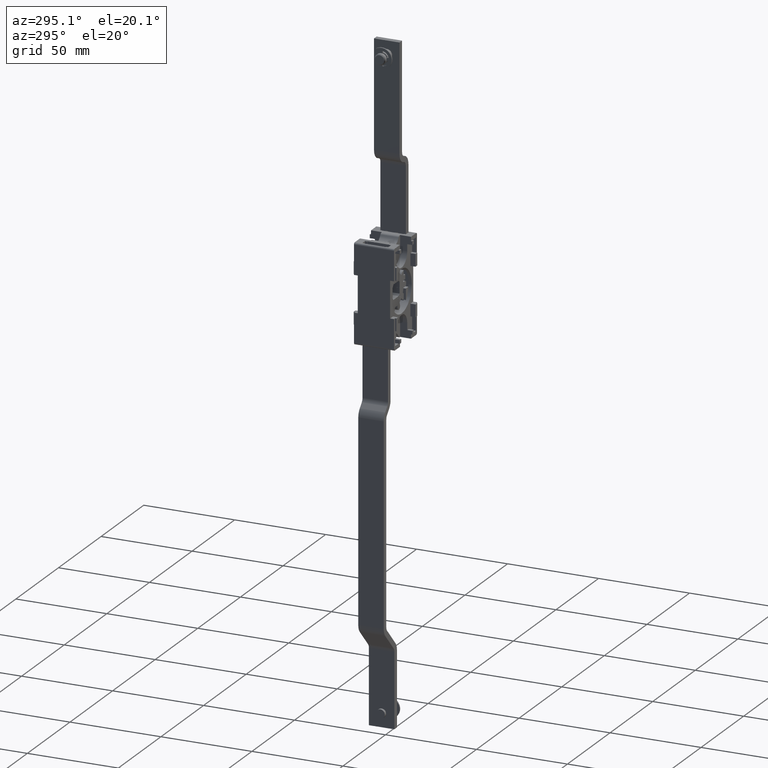
[diagram: clean part render]
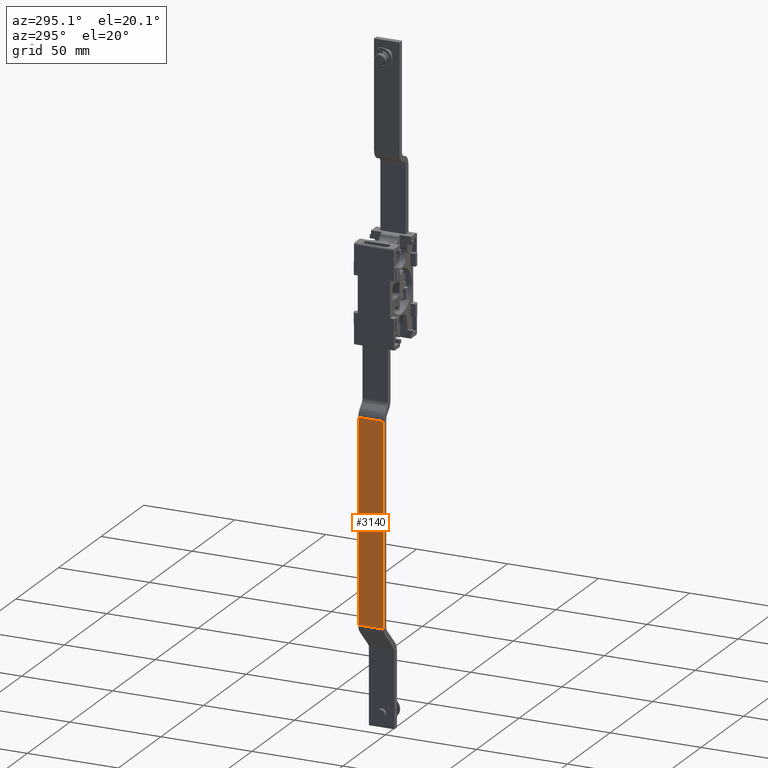
[diagram: same view with one face highlighted and labeled with its STEP entity id]
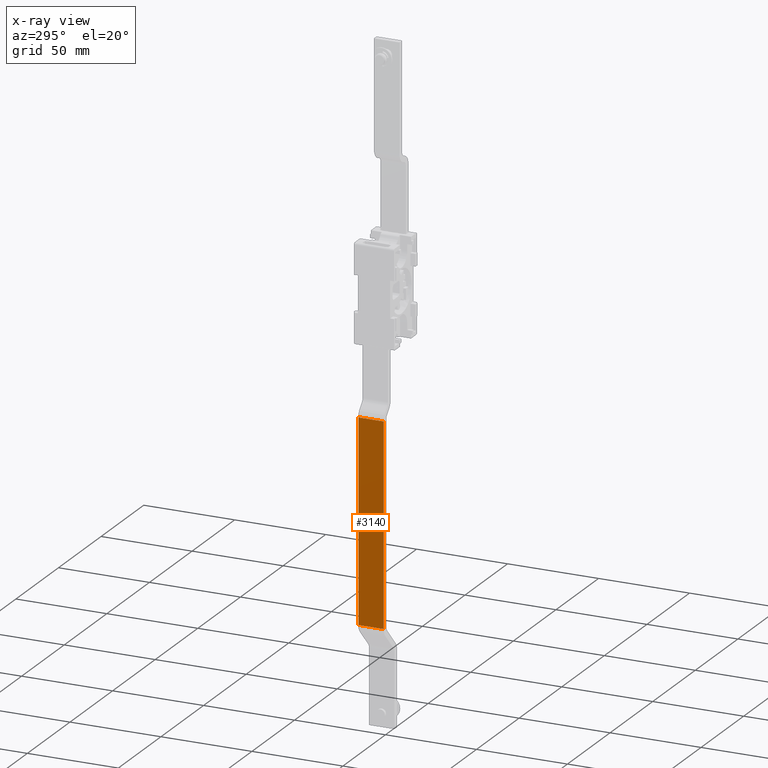
[diagram: x-ray of the same camera — body ghosted, the highlighted face saturated]
A machine part, auxiliary view. The second image highlights one B-rep face of the part: STEP entity #3140.
The next image is the same camera in x-ray: the body ghosted, the highlighted face saturated — about 0% of this face is hidden behind the body in this view.
In plain terms, the highlighted face is a freeform B-spline surface patch.
Its self-contained STEP definition (entity closure, byte-faithful):
#2775=CARTESIAN_POINT('',(-16.900000421246901,7.000000332482160,-173.757367565931990));
#2776=VERTEX_POINT('',#2775);
#2790=CARTESIAN_POINT('',(-16.900000421246851,7.000000332482160,-63.742643714732708));
#2791=VERTEX_POINT('',#2790);
#2792=CARTESIAN_POINT('',(-16.900000421246851,7.000000332482160,-63.742643714732708));
#2793=CARTESIAN_POINT('',(-16.900000421246901,7.000000332482160,-173.757367565931990));
#2794=QUASI_UNIFORM_CURVE('',1,(#2792,#2793),.UNSPECIFIED.,.F.,.U.);
#2795=EDGE_CURVE('',#2791,#2776,#2794,.T.);
#3094=CARTESIAN_POINT('',(-16.900000421246901,-7.000000332482160,-173.757367565931990));
#3095=VERTEX_POINT('',#3094);
#3109=CARTESIAN_POINT('',(-16.900000421246901,7.000000332482160,-173.757367565931990));
#3110=CARTESIAN_POINT('',(-16.900000421246901,-7.000000332482160,-173.757367565931990));
#3111=QUASI_UNIFORM_CURVE('',1,(#3109,#3110),.UNSPECIFIED.,.F.,.U.);
#3112=EDGE_CURVE('',#2776,#3095,#3111,.T.);
#3119=CARTESIAN_POINT('',(-16.900000421246901,-7.699300469984402,-179.252605514238210));
#3120=CARTESIAN_POINT('',(-16.900000421246901,-7.699300469984402,-58.247413635292759));
#3121=CARTESIAN_POINT('',(-16.900000421246901,7.699300720323921,-179.252605514238210));
#3122=CARTESIAN_POINT('',(-16.900000421246901,7.699300720323921,-58.247413635292759));
#3123=B_SPLINE_SURFACE_WITH_KNOTS('',1,1,((#3119,#3121),(#3120,#3122)),.UNSPECIFIED.,.F.,.F.,.U.,(2,2),(2,2),(0.0,121.005191878945500),(0.0,15.398601190308320),.UNSPECIFIED.);
#3124=CARTESIAN_POINT('',(-16.900000421246851,-7.000000332482160,-63.742643714732708));
#3125=VERTEX_POINT('',#3124);
#3126=CARTESIAN_POINT('',(-16.900000421246851,-7.000000332482160,-63.742643714732708));
#3127=CARTESIAN_POINT('',(-16.900000421246901,-7.000000332482160,-173.757367565931990));
#3128=QUASI_UNIFORM_CURVE('',1,(#3126,#3127),.UNSPECIFIED.,.F.,.U.);
#3129=EDGE_CURVE('',#3125,#3095,#3128,.T.);
#3130=ORIENTED_EDGE('',*,*,#3129,.F.);
#3131=CARTESIAN_POINT('',(-16.900000421246851,7.000000332482160,-63.742643714732708));
#3132=CARTESIAN_POINT('',(-16.900000421246851,-7.000000332482160,-63.742643714732708));
#3133=QUASI_UNIFORM_CURVE('',1,(#3131,#3132),.UNSPECIFIED.,.F.,.U.);
#3134=EDGE_CURVE('',#2791,#3125,#3133,.T.);
#3135=ORIENTED_EDGE('',*,*,#3134,.F.);
#3136=ORIENTED_EDGE('',*,*,#2795,.T.);
#3137=ORIENTED_EDGE('',*,*,#3112,.T.);
#3138=EDGE_LOOP('',(#3130,#3135,#3136,#3137));
#3139=FACE_OUTER_BOUND('',#3138,.T.);
#3140=ADVANCED_FACE('',(#3139),#3123,.T.);